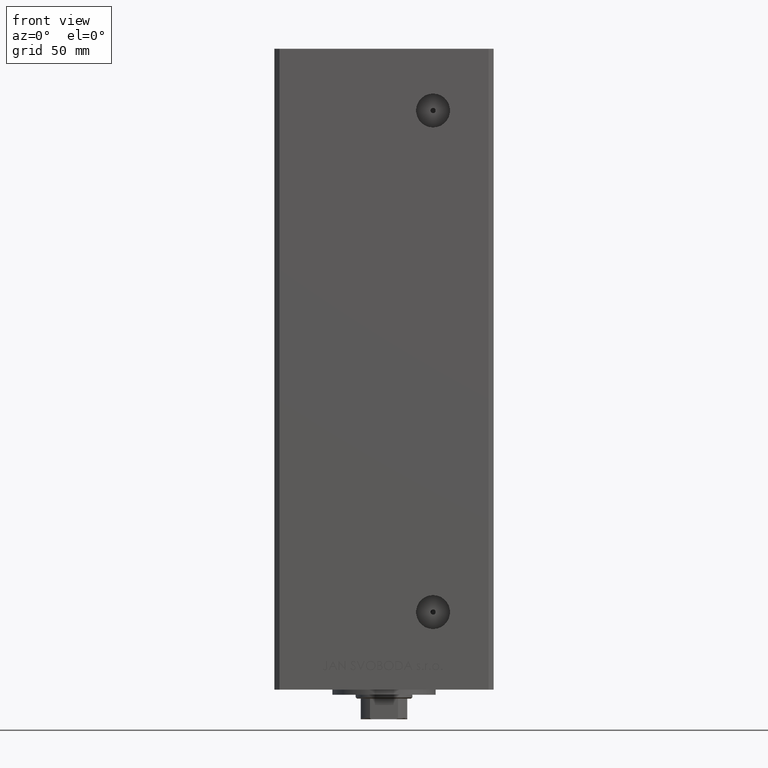
[diagram: clean part render]
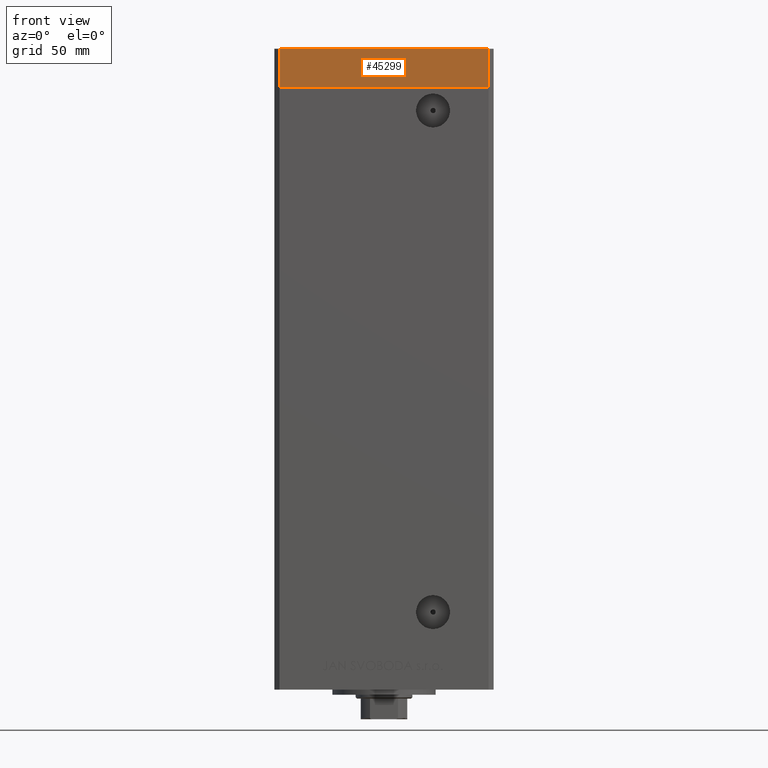
[diagram: same view with one face highlighted and labeled with its STEP entity id]
A machine part, front view. The second image highlights one B-rep face of the part: STEP entity #45299.
In plain terms, the highlighted planar face has unit normal (0, -1, 0).
Its self-contained STEP definition (entity closure, byte-faithful):
#6079 = DIRECTION ( 'NONE',  ( 1.000000000000000000, 1.713307136767217096E-16, 0.000000000000000000 ) ) ;
#8704 = VECTOR ( 'NONE', #14071, 1000.000000000000000 ) ;
#8770 = CARTESIAN_POINT ( 'NONE',  ( -40.49999999999999289, -37.50000000000002132, 0.000000000000000000 ) ) ;
#10388 = LINE ( 'NONE', #17197, #26844 ) ;
#10853 = LINE ( 'NONE', #40526, #34584 ) ;
#12328 = VERTEX_POINT ( 'NONE', #23670 ) ;
#12699 = ORIENTED_EDGE ( 'NONE', *, *, #38831, .T. ) ;
#13564 = DIRECTION ( 'NONE',  ( 1.000000000000000000, 1.713307136767217096E-16, 0.000000000000000000 ) ) ;
#14071 = DIRECTION ( 'NONE',  ( 0.000000000000000000, 0.000000000000000000, 1.000000000000000000 ) ) ;
#14469 = EDGE_CURVE ( 'NONE', #24388, #33124, #10388, .T. ) ;
#17197 = CARTESIAN_POINT ( 'NONE',  ( 40.50000000000000000, -37.50000000000000711, -15.00000000000000000 ) ) ;
#17843 = LINE ( 'NONE', #48495, #8704 ) ;
#18135 = CARTESIAN_POINT ( 'NONE',  ( -40.49999999999999289, -37.50000000000002132, 0.000000000000000000 ) ) ;
#19288 = VECTOR ( 'NONE', #48796, 1000.000000000000000 ) ;
#23670 = CARTESIAN_POINT ( 'NONE',  ( -40.49999999999999289, -37.50000000000002132, -15.00000000000000000 ) ) ;
#24388 = VERTEX_POINT ( 'NONE', #34410 ) ;
#26655 = CARTESIAN_POINT ( 'NONE',  ( 40.50000000000000000, -37.50000000000000711, 0.000000000000000000 ) ) ;
#26844 = VECTOR ( 'NONE', #29002, 1000.000000000000000 ) ;
#28488 = EDGE_CURVE ( 'NONE', #12328, #49411, #17843, .T. ) ;
#29002 = DIRECTION ( 'NONE',  ( 0.000000000000000000, 0.000000000000000000, 1.000000000000000000 ) ) ;
#30764 = ORIENTED_EDGE ( 'NONE', *, *, #35232, .F. ) ;
#32437 = PLANE ( 'NONE',  #34394 ) ;
#33124 = VERTEX_POINT ( 'NONE', #26655 ) ;
#34394 = AXIS2_PLACEMENT_3D ( 'NONE', #47760, #39979, #13564 ) ;
#34410 = CARTESIAN_POINT ( 'NONE',  ( 40.50000000000000000, -37.50000000000000711, -15.00000000000000000 ) ) ;
#34584 = VECTOR ( 'NONE', #6079, 1000.000000000000000 ) ;
#35232 = EDGE_CURVE ( 'NONE', #49411, #33124, #40764, .T. ) ;
#38831 = EDGE_CURVE ( 'NONE', #12328, #24388, #10853, .T. ) ;
#39979 = DIRECTION ( 'NONE',  ( 1.713307136767217096E-16, -1.000000000000000000, 0.000000000000000000 ) ) ;
#40093 = ORIENTED_EDGE ( 'NONE', *, *, #14469, .T. ) ;
#40526 = CARTESIAN_POINT ( 'NONE',  ( -40.49999999999999289, -37.50000000000002132, -15.00000000000000000 ) ) ;
#40764 = LINE ( 'NONE', #18135, #19288 ) ;
#41470 = EDGE_LOOP ( 'NONE', ( #30764, #48549, #12699, #40093 ) ) ;
#45299 = ADVANCED_FACE ( 'NONE', ( #47994 ), #32437, .T. ) ;
#47760 = CARTESIAN_POINT ( 'NONE',  ( -40.49999999999999289, -37.50000000000002132, -15.00000000000000000 ) ) ;
#47994 = FACE_OUTER_BOUND ( 'NONE', #41470, .T. ) ;
#48495 = CARTESIAN_POINT ( 'NONE',  ( -40.49999999999999289, -37.50000000000002132, -15.00000000000000000 ) ) ;
#48549 = ORIENTED_EDGE ( 'NONE', *, *, #28488, .F. ) ;
#48796 = DIRECTION ( 'NONE',  ( 1.000000000000000000, 1.713307136767217096E-16, 0.000000000000000000 ) ) ;
#49411 = VERTEX_POINT ( 'NONE', #8770 ) ;